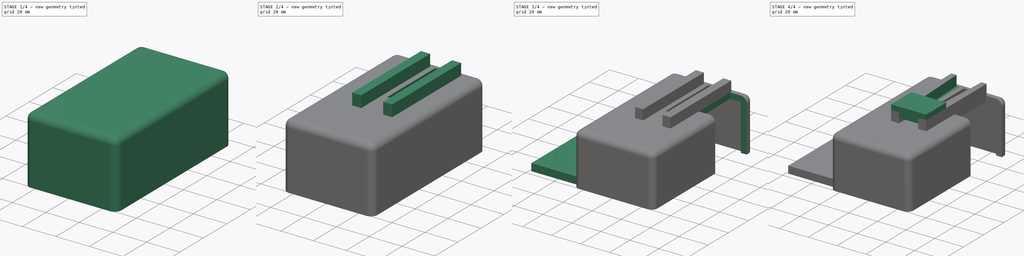
[diagram: build sequence overview — one tinted view per stage of 4, left to right]
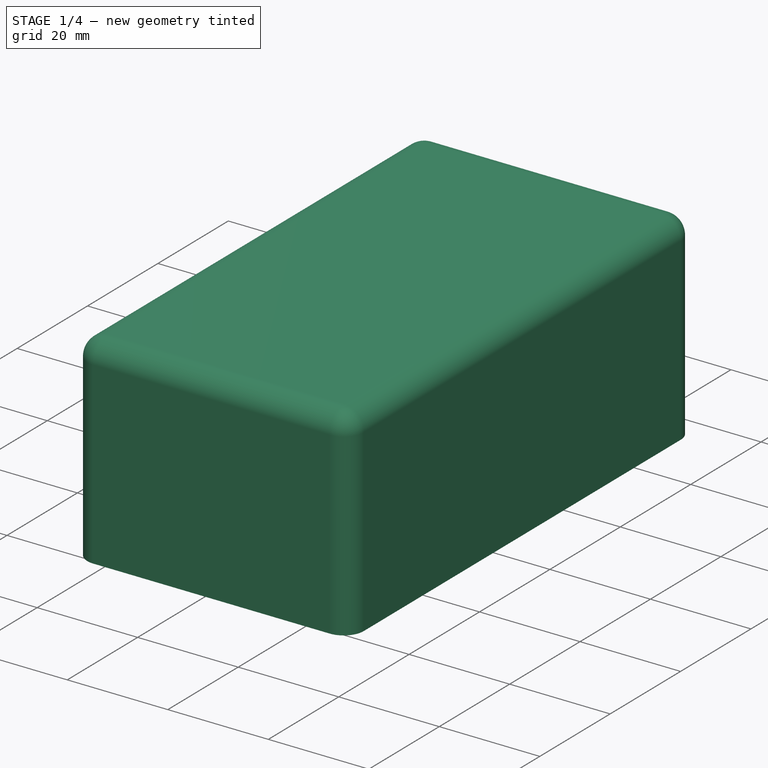
[diagram: stage 1 of 4 — iso view after this stage's code; geometry added in this stage tinted green]
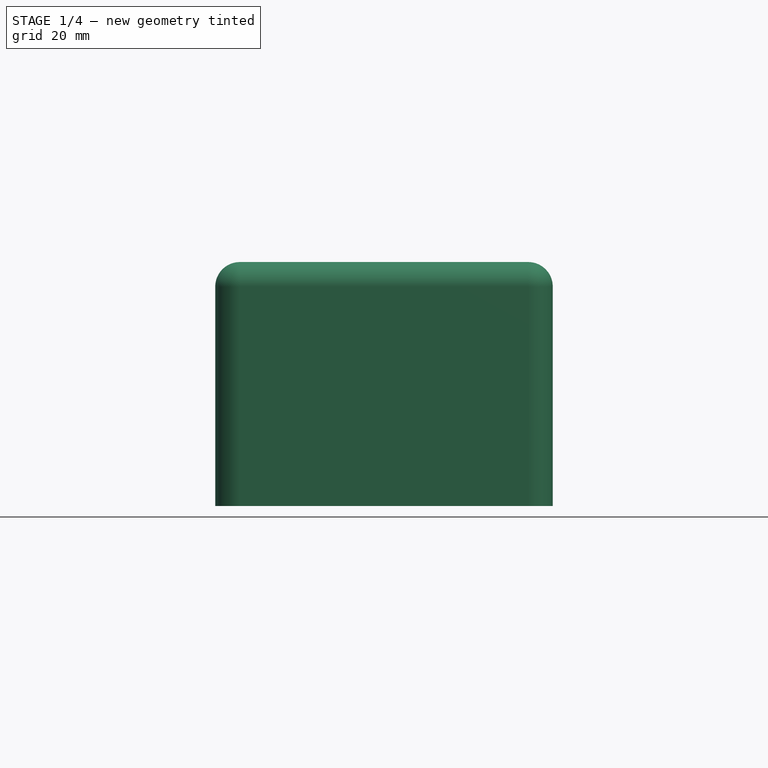
[diagram: stage 1 of 4 — front view after this stage's code; geometry added in this stage tinted green]
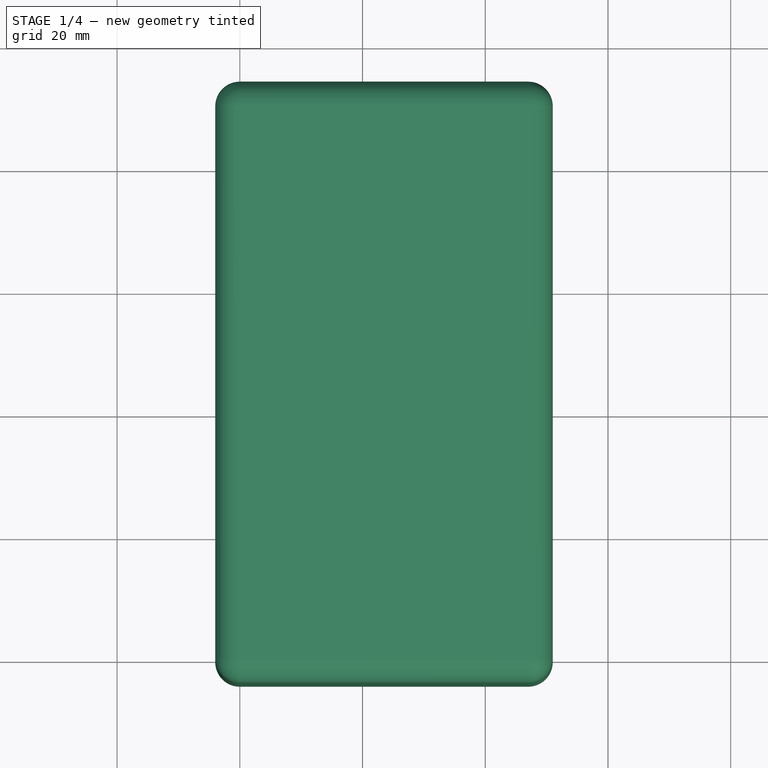
[diagram: stage 1 of 4 — top view after this stage's code; geometry added in this stage tinted green]
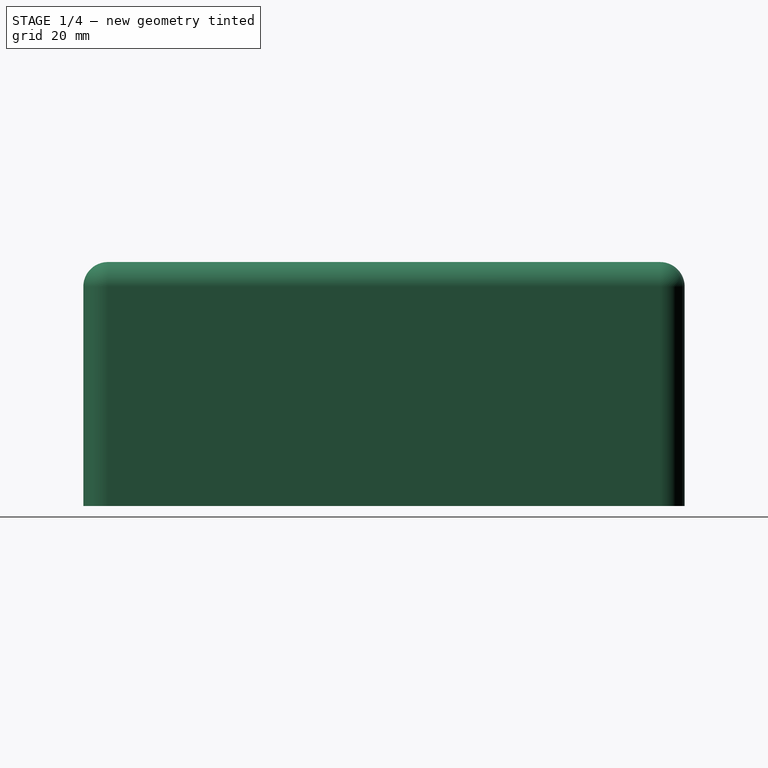
[diagram: stage 1 of 4 — right view after this stage's code; geometry added in this stage tinted green]
FCSTD DOCUMENT  (FreeCAD 0.21R33771 (Git))
Label: Saw table
License: All rights reserved
LicenseURL: https://en.wikipedia.org/wiki/All_rights_reserved
objects: Sketcher::SketchObject×8, PartDesign::Pocket×5, PartDesign::Pad×4, PartDesign::Thickness×1, PartDesign::Body×1
note: 29 computed .brp shape members not serialized (recipe doc carries the construction recipe); baked Part::Feature solids carry a one-line shape summary decoded from their .brp

FEATURE [Sketcher::SketchObject] Sketch
  FullyConstrained = true
  MapMode = 5
  Support = -> [XY_Plane]
  sketch-geometry (4):
    g0: LineSegment StartX=0 StartY=0 StartZ=0 EndX=47 EndY=0 EndZ=0
    g1: LineSegment StartX=47 StartY=0 StartZ=0 EndX=47 EndY=90 EndZ=0
    g2: LineSegment StartX=47 StartY=90 StartZ=0 EndX=0 EndY=90 EndZ=0
    g3: LineSegment StartX=0 StartY=90 StartZ=0 EndX=0 EndY=0 EndZ=0
  constraints (11):
    c: Coincident(g0,g1)
    c: Coincident(g1,g2)
    c: Coincident(g2,g3)
    c: Coincident(g3,g0)
    c: Horizontal(g0)
    c: Horizontal(g2)
    c: Vertical(g1)
    c: Vertical(g3)
    c: Coincident(g0,g-1)
    c: Distance(g0) = 47
    c: Distance(g1) = 90
FEATURE [PartDesign::Pad] Pad
  Direction = (0,0,1)
  Length = 35.75
  Length2 = 10
  Profile = -> Sketch
  ReferenceAxis = -> Sketch [N_Axis]
  Type = 0
FEATURE [PartDesign::Thickness] Thickness
  Base = -> Pad [Face5]
  BaseFeature = -> Pad
  Intersection = false
  Join = 0
  Mode = 0
  SupportTransform = false
  Value = 4
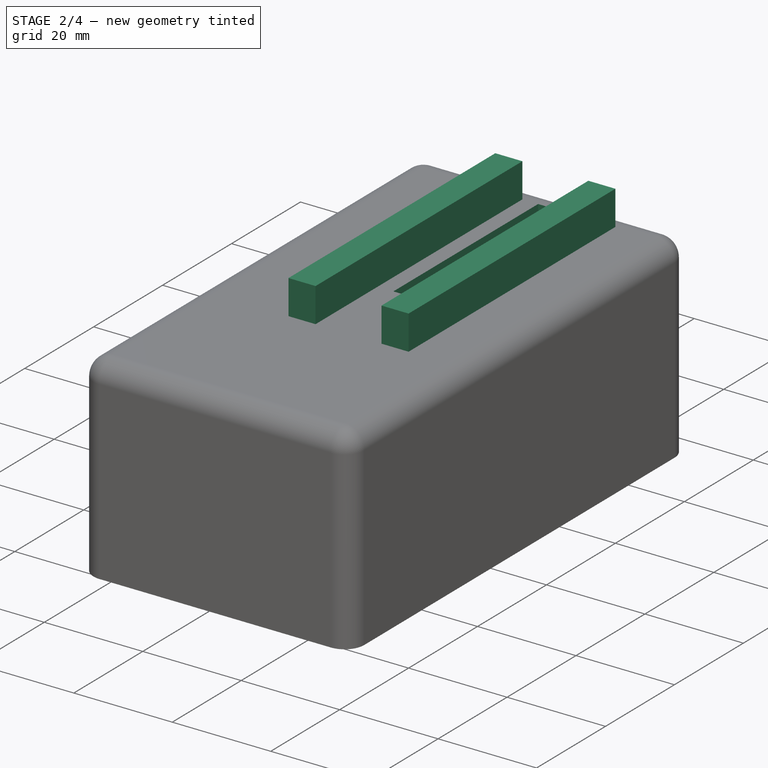
[diagram: stage 2 of 4 — iso view after this stage's code; geometry added in this stage tinted green]
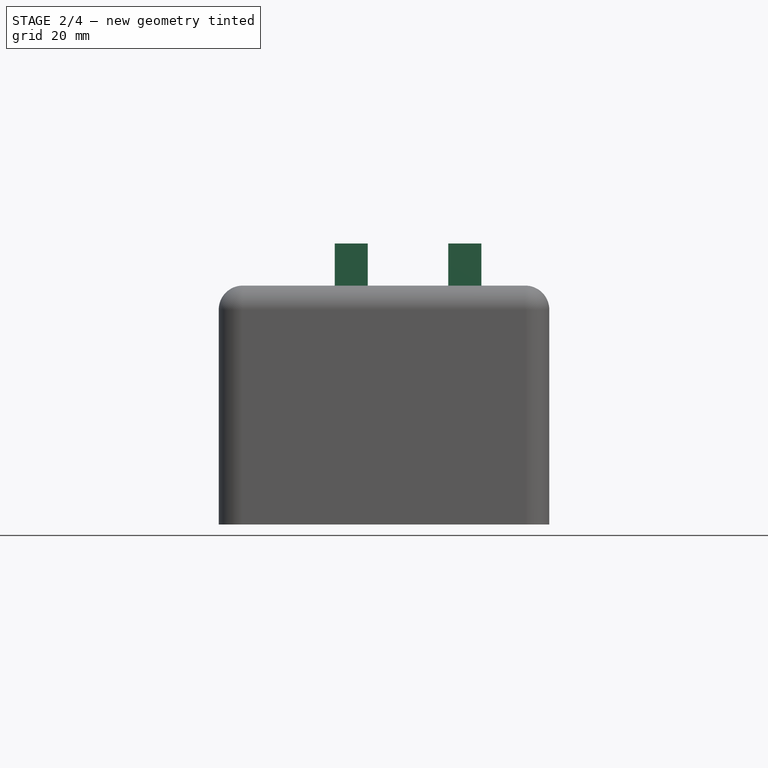
[diagram: stage 2 of 4 — front view after this stage's code; geometry added in this stage tinted green]
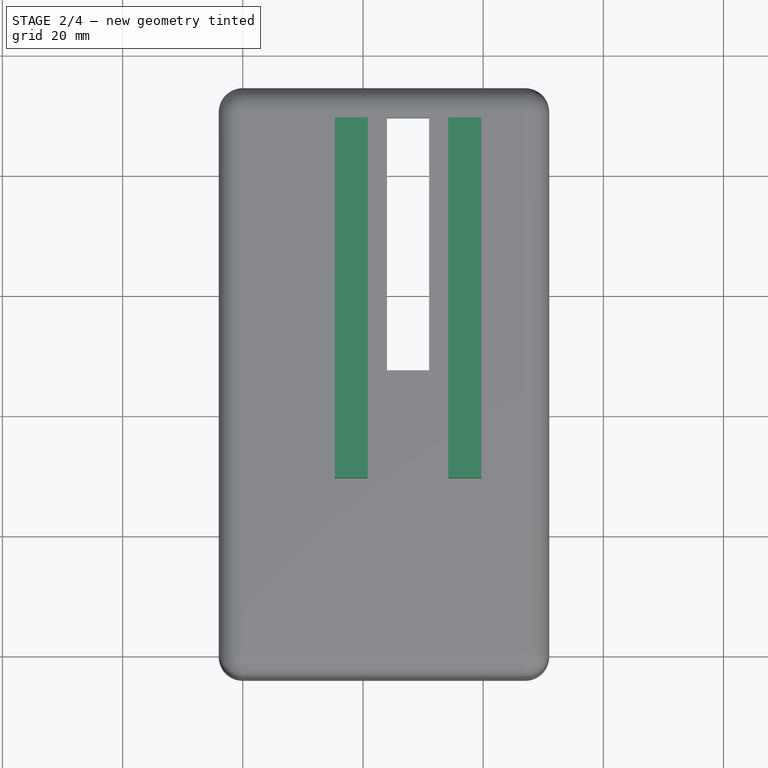
[diagram: stage 2 of 4 — top view after this stage's code; geometry added in this stage tinted green]
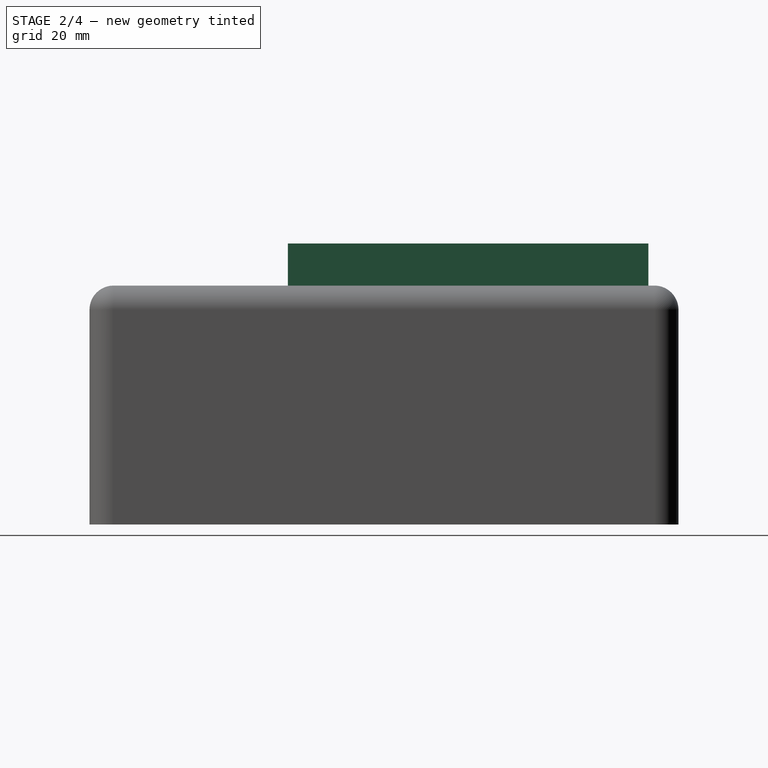
[diagram: stage 2 of 4 — right view after this stage's code; geometry added in this stage tinted green]
FEATURE [Sketcher::SketchObject] Sketch001
  FullyConstrained = true
  MapMode = 5
  Placement = pos=(51,0,0) rot=(0.57735,0.57735,0.57735;2.0944rad)
  Support = -> [Thickness]
  sketch-geometry (5):
    g0: LineSegment StartX=0 StartY=0 StartZ=0 EndX=27 EndY=0 EndZ=0
    g1: LineSegment StartX=27 StartY=0 StartZ=0 EndX=27 EndY=19 EndZ=0
    g2: LineSegment StartX=27 StartY=19 StartZ=0 EndX=0 EndY=19 EndZ=0
    g3: LineSegment StartX=0 StartY=19 StartZ=0 EndX=0 EndY=0 EndZ=0
    g4: Circle CenterX=27 CenterY=19 CenterZ=0 NormalX=0 NormalY=0 NormalZ=1 AngleXU=0 Radius=0.025
  constraints (13):
    c: Coincident(g0,g1)
    c: Coincident(g1,g2)
    c: Coincident(g2,g3)
    c: Coincident(g3,g0)
    c: Horizontal(g0)
    c: Horizontal(g2)
    c: Vertical(g1)
    c: Vertical(g3)
    c: Coincident(g0,g-1)
    c: Distance(g2) = 27
    c: Distance(g1) = 19
    c: Coincident(g4,g1)
    c: Diameter(g4) = 0.05
FEATURE [PartDesign::Pocket] Pocket
  BaseFeature = -> Thickness
  Direction = (-1,0,0)
  Length = 5
  Length2 = 5
  Profile = -> Sketch001
  ReferenceAxis = -> Sketch001 [N_Axis]
  Type = 0
FEATURE [Sketcher::SketchObject] Sketch002
  ExternalGeometry = -> [Pocket]
  FullyConstrained = true
  MapMode = 5
  Placement = pos=(0,0,39.75) rot=(0,0,1;0rad)
  Support = -> [Pocket]
  sketch-geometry (8):
    g0: LineSegment StartX=0 StartY=90 StartZ=0 EndX=24 EndY=90 EndZ=0
    g1: LineSegment StartX=24 StartY=90 StartZ=0 EndX=24 EndY=89 EndZ=0
    g2: LineSegment StartX=24 StartY=89 StartZ=0 EndX=0 EndY=89 EndZ=0
    g3: LineSegment StartX=0 StartY=89 StartZ=0 EndX=0 EndY=90 EndZ=0
    g4: LineSegment StartX=24 StartY=89 StartZ=0 EndX=31 EndY=89 EndZ=0
    g5: LineSegment StartX=31 StartY=89 StartZ=0 EndX=31 EndY=47 EndZ=0
    g6: LineSegment StartX=31 StartY=47 StartZ=0 EndX=24 EndY=47 EndZ=0
    g7: LineSegment StartX=24 StartY=47 StartZ=0 EndX=24 EndY=89 EndZ=0
  constraints (22):
    c: Coincident(g0,g1)
    c: Coincident(g1,g2)
    c: Coincident(g2,g3)
    c: Coincident(g3,g0)
    c: Horizontal(g0)
    c: Horizontal(g2)
    c: Vertical(g1)
    c: Vertical(g3)
    c: Coincident(g0,g-4)
    c: Distance(g2) = 24
    c: Distance(g1) = 1
    c: Coincident(g4,g5)
    c: Coincident(g5,g6)
    c: Coincident(g6,g7)
    c: Coincident(g7,g4)
    c: Horizontal(g4)
    c: Horizontal(g6)
    c: Vertical(g5)
    c: Vertical(g7)
    c: Coincident(g4,g1)
    c: Distance(g5) = 42
    c: Distance(g6) = 7
FEATURE [PartDesign::Pocket] Pocket001
  BaseFeature = -> Pocket
  Direction = (0,0,-1)
  Length = 5
  Length2 = 5
  Profile = -> Sketch002
  ReferenceAxis = -> Sketch002 [N_Axis]
  Type = 0
FEATURE [Sketcher::SketchObject] Sketch003
  ExternalGeometry = -> [Pocket001]
  FullyConstrained = true
  MapMode = 5
  Placement = pos=(0,0,39.75) rot=(0,0,1;0rad)
  Support = -> [Pocket001]
  sketch-geometry (16):
    g0: LineSegment StartX=24 StartY=89 StartZ=0 EndX=20.8 EndY=89 EndZ=0
    g1: LineSegment StartX=20.8 StartY=89 StartZ=0 EndX=20.8 EndY=29 EndZ=0
    g2: LineSegment StartX=20.8 StartY=29 StartZ=0 EndX=24 EndY=29 EndZ=0
    g3: LineSegment StartX=24 StartY=29 StartZ=0 EndX=24 EndY=89 EndZ=0
    g4: LineSegment StartX=31 StartY=89 StartZ=0 EndX=34.2 EndY=89 EndZ=0
    g5: LineSegment StartX=34.2 StartY=89 StartZ=0 EndX=34.2 EndY=29 EndZ=0
    g6: LineSegment StartX=34.2 StartY=29 StartZ=0 EndX=31 EndY=29 EndZ=0
    g7: LineSegment StartX=31 StartY=29 StartZ=0 EndX=31 EndY=89 EndZ=0
    g8: LineSegment StartX=20.8 StartY=89 StartZ=0 EndX=15.3 EndY=89 EndZ=0
    g9: LineSegment StartX=15.3 StartY=89 StartZ=0 EndX=15.3 EndY=29 EndZ=0
    g10: LineSegment StartX=15.3 StartY=29 StartZ=0 EndX=20.8 EndY=29 EndZ=0
    g11: LineSegment StartX=20.8 StartY=29 StartZ=0 EndX=20.8 EndY=89 EndZ=0
    g12: LineSegment StartX=34.2 StartY=89 StartZ=0 EndX=39.7 EndY=89 EndZ=0
    g13: LineSegment StartX=39.7 StartY=89 StartZ=0 EndX=39.7 EndY=29 EndZ=0
    g14: LineSegment StartX=39.7 StartY=29 StartZ=0 EndX=34.2 EndY=29 EndZ=0
    g15: LineSegment StartX=34.2 StartY=29 StartZ=0 EndX=34.2 EndY=89 EndZ=0
  constraints (42):
    c: Coincident(g0,g1)
    c: Coincident(g1,g2)
    c: Coincident(g2,g3)
    c: Coincident(g3,g0)
    c: Horizontal(g0)
    c: Horizontal(g2)
    c: Vertical(g1)
    c: Vertical(g3)
    c: Coincident(g0,g-5)
    c: Coincident(g4,g5)
    c: Coincident(g5,g6)
    c: Coincident(g6,g7)
    c: Coincident(g7,g4)
    c: Horizontal(g4)
    c: Horizontal(g6)
    c: Vertical(g5)
    c: Vertical(g7)
    c: Coincident(g4,g-5)
    c: Distance(g0) = 3.2
    c: Distance(g1) = 60
    c: Equal(g0,g4)
    c: Equal(g1,g5)
    c: Coincident(g8,g9)
    c: Coincident(g9,g10)
    c: Coincident(g10,g11)
    c: Coincident(g11,g8)
    c: Horizontal(g8)
    c: Horizontal(g10)
    c: Vertical(g9)
    c: Coincident(g8,g0)
    c: Coincident(g12,g13)
    c: Coincident(g13,g14)
    c: Coincident(g14,g15)
    c: Coincident(g15,g12)
    c: Horizontal(g12)
    c: Horizontal(g14)
    c: Vertical(g13)
    c: Coincident(g12,g4)
    c: Coincident(g1,g10)
    c: Coincident(g14,g5)
    c: Distance(g8) = 5.5
    c: Equal(g8,g12)
FEATURE [PartDesign::Pad] Pad001
  BaseFeature = -> Pocket001
  Direction = (0,0,1)
  Length = 7
  Length2 = 10
  Profile = -> Sketch003
  ReferenceAxis = -> Sketch003 [N_Axis]
  Type = 0
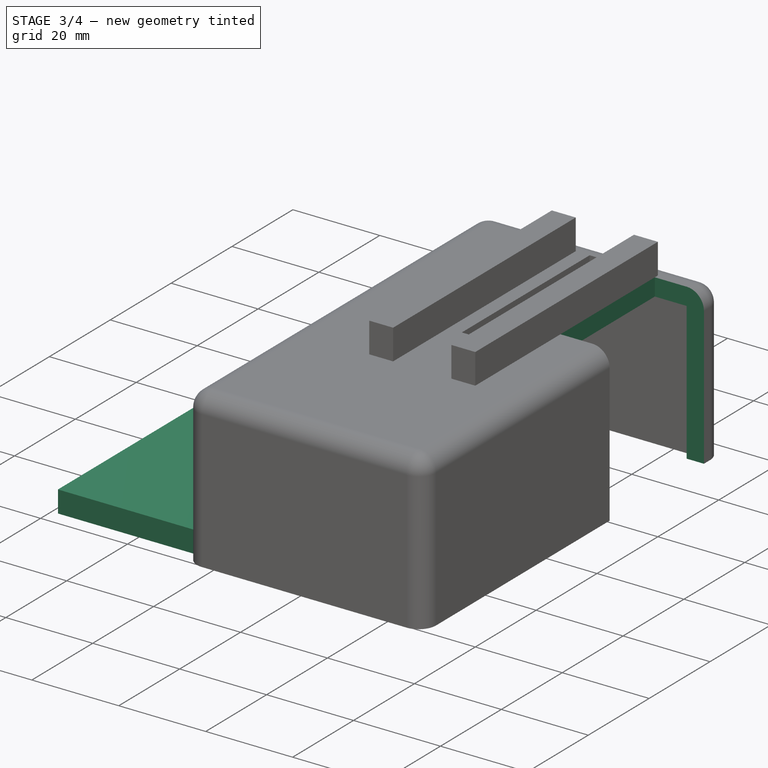
[diagram: stage 3 of 4 — iso view after this stage's code; geometry added in this stage tinted green]
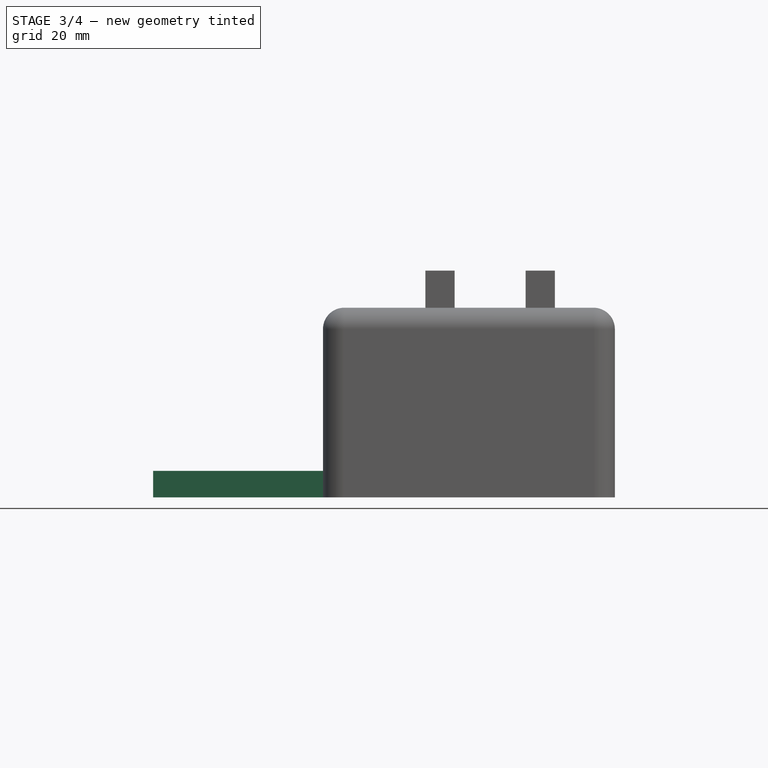
[diagram: stage 3 of 4 — front view after this stage's code; geometry added in this stage tinted green]
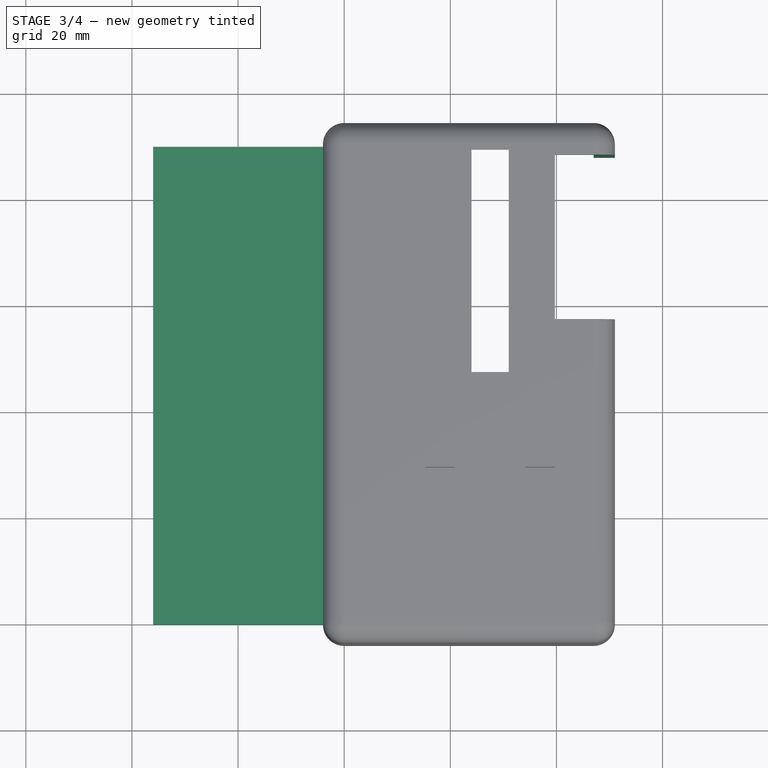
[diagram: stage 3 of 4 — top view after this stage's code; geometry added in this stage tinted green]
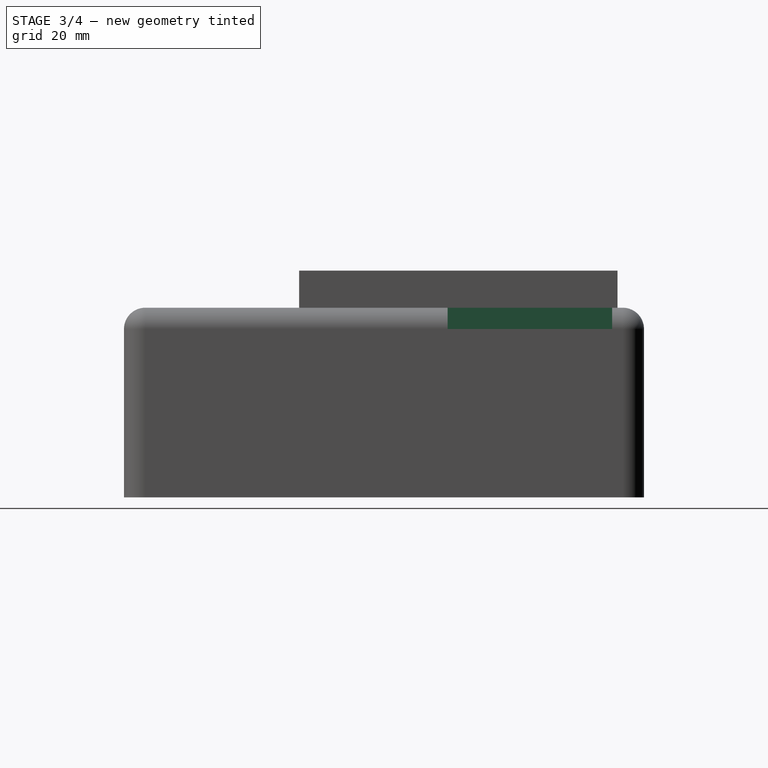
[diagram: stage 3 of 4 — right view after this stage's code; geometry added in this stage tinted green]
FEATURE [PartDesign::Pocket] Pocket002
  BaseFeature = -> Pad001
  Direction = (0,0,1)
  Length = 4
  Length2 = 5
  Profile = -> Pad001 [Face4]
  Type = 0
FEATURE [Sketcher::SketchObject] Sketch004
  ExternalGeometry = -> [Pocket002]
  FullyConstrained = true
  MapMode = 5
  Placement = pos=(51,0,0) rot=(0.57735,0.57735,0.57735;2.0944rad)
  Support = -> [Pocket002]
  sketch-geometry (8):
    g0: LineSegment StartX=90 StartY=4 StartZ=0 EndX=88 EndY=4 EndZ=0
    g1: LineSegment StartX=88 StartY=4 StartZ=0 EndX=88 EndY=8 EndZ=0
    g2: LineSegment StartX=88 StartY=8 StartZ=0 EndX=90 EndY=8 EndZ=0
    g3: LineSegment StartX=90 StartY=8 StartZ=0 EndX=90 EndY=4 EndZ=0
    g4: LineSegment StartX=88 StartY=4 StartZ=0 EndX=57 EndY=4 EndZ=0
    g5: LineSegment StartX=57 StartY=4 StartZ=0 EndX=57 EndY=44 EndZ=0
    g6: LineSegment StartX=57 StartY=44 StartZ=0 EndX=88 EndY=44 EndZ=0
    g7: LineSegment StartX=88 StartY=44 StartZ=0 EndX=88 EndY=4 EndZ=0
  constraints (22):
    c: Coincident(g0,g1)
    c: Coincident(g1,g2)
    c: Coincident(g2,g3)
    c: Coincident(g3,g0)
    c: Horizontal(g0)
    c: Horizontal(g2)
    c: Vertical(g1)
    c: Vertical(g3)
    c: Coincident(g0,g-4)
    c: Distance(g2) = 2
    c: Distance(g3) = 4
    c: Coincident(g4,g5)
    c: Coincident(g5,g6)
    c: Coincident(g6,g7)
    c: Coincident(g7,g4)
    c: Horizontal(g4)
    c: Horizontal(g6)
    c: Vertical(g5)
    c: Vertical(g7)
    c: Coincident(g4,g0)
    c: Distance(g4) = 31
    c: Distance(g7) = 40
FEATURE [PartDesign::Pocket] Pocket003
  BaseFeature = -> Pocket002
  Direction = (-1,0,0)
  Length = 0
  Length2 = 5
  Profile = -> Sketch004
  ReferenceAxis = -> Sketch004 [N_Axis]
  Type = 3
  UpToFace = -> Pocket002 [Face35]
FEATURE [Sketcher::SketchObject] Sketch005
  ExternalGeometry = -> [Pocket003]
  FullyConstrained = true
  MapMode = 5
  Placement = pos=(-4,0,0) rot=(0.57735,-0.57735,-0.57735;2.0944rad)
  Support = -> [Pocket003]
  sketch-geometry (4):
    g0: LineSegment StartX=-90 StartY=4 StartZ=0 EndX=0 EndY=4 EndZ=0
    g1: LineSegment StartX=0 StartY=4 StartZ=0 EndX=0 EndY=9 EndZ=0
    g2: LineSegment StartX=0 StartY=9 StartZ=0 EndX=-90 EndY=9 EndZ=0
    g3: LineSegment StartX=-90 StartY=9 StartZ=0 EndX=-90 EndY=4 EndZ=0
  constraints (11):
    c: Coincident(g0,g1)
    c: Coincident(g1,g2)
    c: Coincident(g2,g3)
    c: Coincident(g3,g0)
    c: Horizontal(g0)
    c: Horizontal(g2)
    c: Vertical(g1)
    c: Vertical(g3)
    c: Coincident(g0,g-3)
    c: PointOnObject(g1,g-2)
    c: Distance(g3) = 5
FEATURE [PartDesign::Pad] Pad002
  BaseFeature = -> Pocket003
  Direction = (-1,0,0)
  Length = 32
  Length2 = 10
  Profile = -> Sketch005
  ReferenceAxis = -> Sketch005 [N_Axis]
  Type = 0
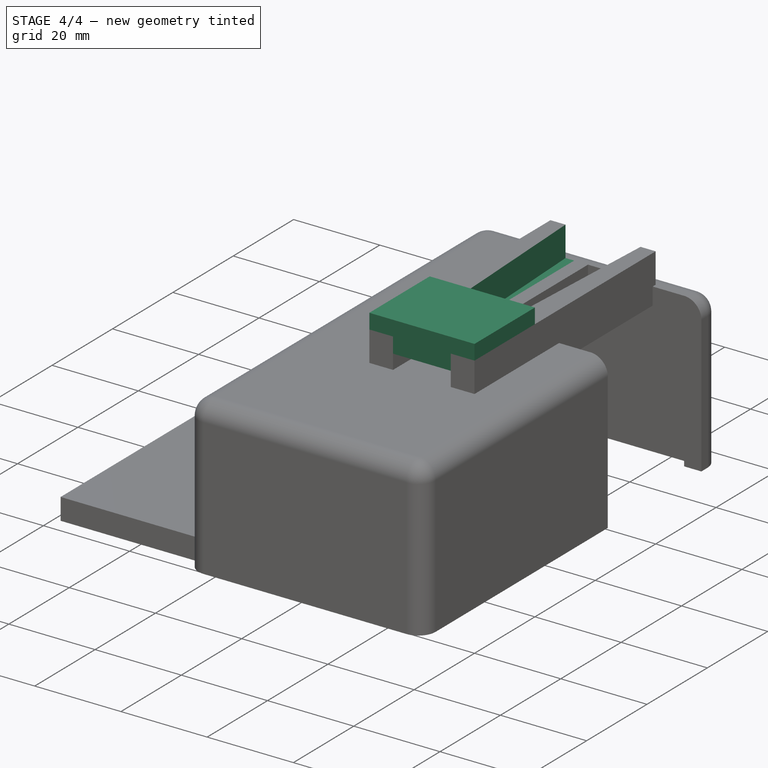
[diagram: stage 4 of 4 — iso view after this stage's code; geometry added in this stage tinted green]
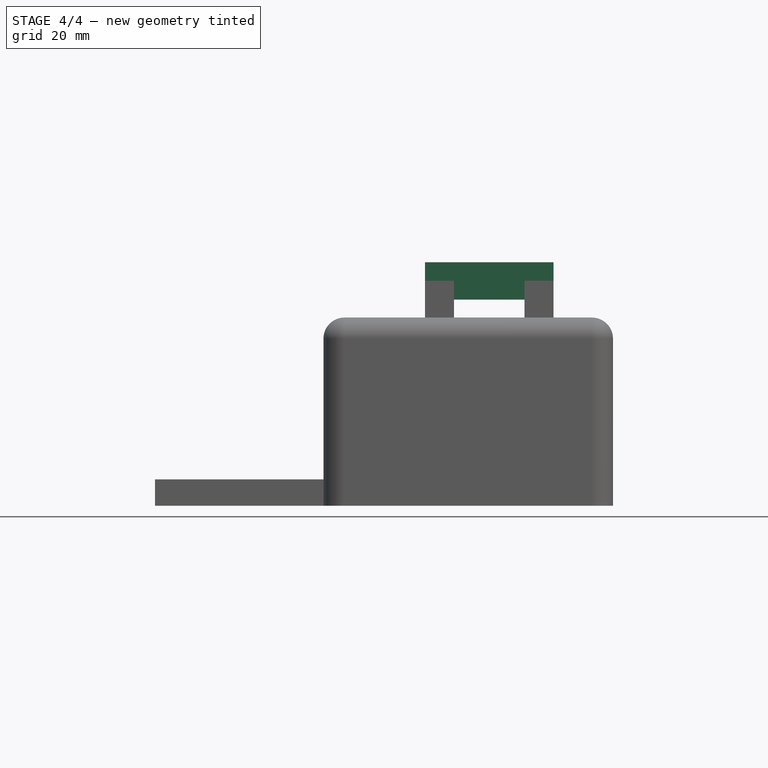
[diagram: stage 4 of 4 — front view after this stage's code; geometry added in this stage tinted green]
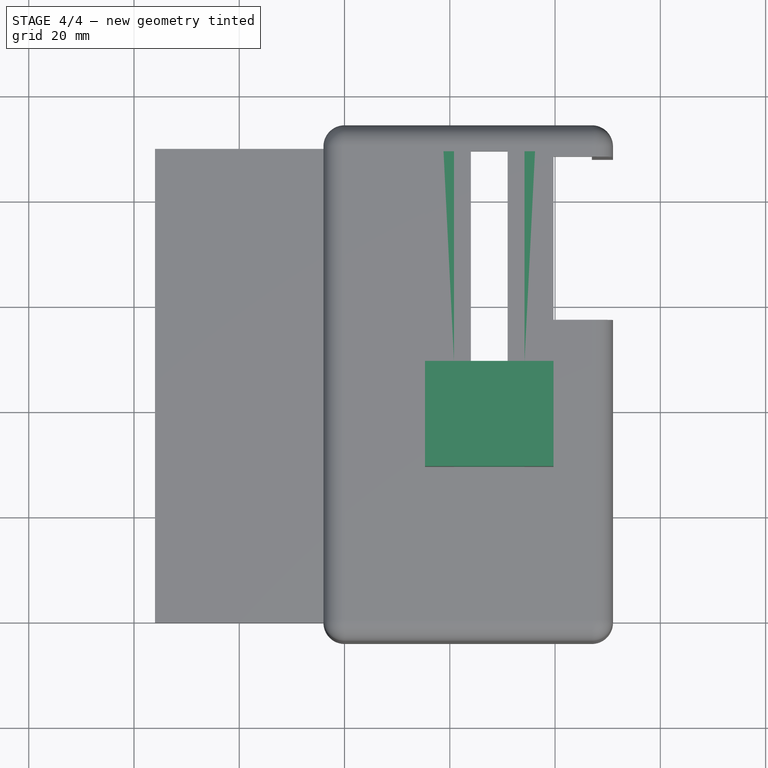
[diagram: stage 4 of 4 — top view after this stage's code; geometry added in this stage tinted green]
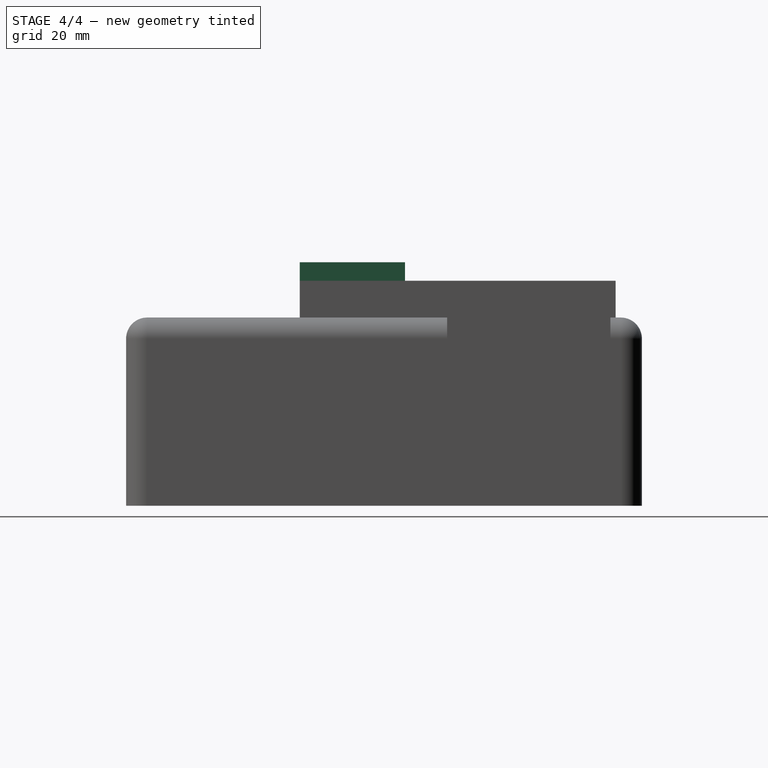
[diagram: stage 4 of 4 — right view after this stage's code; geometry added in this stage tinted green]
FEATURE [Sketcher::SketchObject] Sketch006
  ExternalGeometry = -> [Pad002]
  FullyConstrained = true
  MapMode = 5
  Placement = pos=(0,29,0) rot=(1,0,0;1.5708rad)
  Support = -> [Pad002]
  sketch-geometry (9):
    g0: LineSegment StartX=15.3 StartY=46.75 StartZ=0 EndX=15.3 EndY=50.25 EndZ=0
    g1: LineSegment StartX=34.2 StartY=46.75 StartZ=0 EndX=34.2 EndY=43.15 EndZ=0
    g2: LineSegment StartX=15.3 StartY=50.25 StartZ=0 EndX=34.2 EndY=50.25 EndZ=0
    g3: LineSegment StartX=34.2 StartY=46.75 StartZ=0 EndX=34.2 EndY=43.15 EndZ=0
    g4: LineSegment StartX=34.2 StartY=43.15 StartZ=0 EndX=15.3 EndY=43.15 EndZ=0
    g5: LineSegment StartX=15.3 StartY=43.15 StartZ=0 EndX=15.3 EndY=50.25 EndZ=0
    g6: LineSegment StartX=34.2 StartY=50.25 StartZ=0 EndX=39.7 EndY=50.25 EndZ=0
    g7: LineSegment StartX=39.7 StartY=50.25 StartZ=0 EndX=39.7 EndY=46.75 EndZ=0
    g8: LineSegment StartX=39.7 StartY=46.75 StartZ=0 EndX=34.2 EndY=46.75 EndZ=0
  constraints (25):
    c: Coincident(g0,g-5)
    c: Vertical(g0)
    c: Distance(g0) = 3.5
    c: Coincident(g1,g-4)
    c: PointOnObject(g1,g-4)
    c: Distance(g1) = 3.6
    c: Coincident(g3,g4)
    c: Coincident(g4,g5)
    c: Coincident(g5,g2)
    c: Horizontal(g2)
    c: Horizontal(g4)
    c: Vertical(g3)
    c: Vertical(g5)
    c: Coincident(g2,g0)
    c: Coincident(g3,g1)
    c: PointOnObject(g3,g-7)
    c: Coincident(g6,g7)
    c: Coincident(g7,g8)
    c: Horizontal(g6)
    c: Horizontal(g8)
    c: Vertical(g7)
    c: Coincident(g6,g2)
    c: Coincident(g7,g-8)
    c: Vertical(g2,g3)
    c: Coincident(g3,g8)
FEATURE [PartDesign::Pad] Pad003
  BaseFeature = -> Pad002
  Direction = (0,-1,2e-16)
  Length = 20
  Length2 = 10
  Profile = -> Sketch006
  ReferenceAxis = -> Sketch006 [N_Axis]
  Reversed = true
  Type = 0
FEATURE [Sketcher::SketchObject] Sketch007
  ExternalGeometry = -> [Pad003]
  FullyConstrained = true
  MapMode = 5
  Placement = pos=(0,0,46.75) rot=(0,0,1;0rad)
  Support = -> [Pad003]
  sketch-geometry (7):
    g0: LineSegment StartX=20.8 StartY=89 StartZ=0 EndX=18.8 EndY=89 EndZ=0
    g1: LineSegment StartX=34.2 StartY=89 StartZ=0 EndX=36.2 EndY=89 EndZ=0
    g2: LineSegment StartX=36.2 StartY=89 StartZ=0 EndX=34.2 EndY=49 EndZ=0
    g3: LineSegment StartX=34.2 StartY=89 StartZ=0 EndX=34.2 EndY=49 EndZ=0
    g4: LineSegment StartX=18.8 StartY=89 StartZ=0 EndX=20.8 EndY=49 EndZ=0
    g5: LineSegment StartX=34.2 StartY=49 StartZ=0 EndX=20.8 EndY=49 EndZ=0
    g6: LineSegment StartX=20.8 StartY=89 StartZ=0 EndX=20.8 EndY=49 EndZ=0
  constraints (17):
    c: Coincident(g0,g-4)
    c: PointOnObject(g0,g-3)
    c: Coincident(g1,g-6)
    c: PointOnObject(g1,g-6)
    c: Distance(g0) = 2
    c: Distance(g1) = 2
    c: Coincident(g2,g1)
    c: Coincident(g2,g-5)
    c: Coincident(g3,g1)
    c: Coincident(g3,g2)
    c: Coincident(g4,g0)
    c: Coincident(g5,g2)
    c: PointOnObject(g5,g-4)
    c: Horizontal(g5)
    c: Coincident(g4,g5)
    c: Coincident(g6,g0)
    c: Coincident(g6,g4)
FEATURE [PartDesign::Pocket] Pocket004
  BaseFeature = -> Pad003
  Direction = (0,0,-1)
  Length = 0
  Length2 = 5
  Profile = -> Sketch007
  ReferenceAxis = -> Sketch007 [N_Axis]
  Type = 3
  UpToFace = -> Pad003 [Face26]
FEATURE [PartDesign::Body] Body
  Group = -> [Sketch,Pad,Thickness,Sketch001,Pocket,Sketch002,Pocket001,Sketch003,Pad001,Pocket002,Sketch004,Pocket003,Sketch005,Pad002,Sketch006,Pad003,Sketch007,Pocket004]
  Origin = -> Origin
  Tip = -> Pocket004
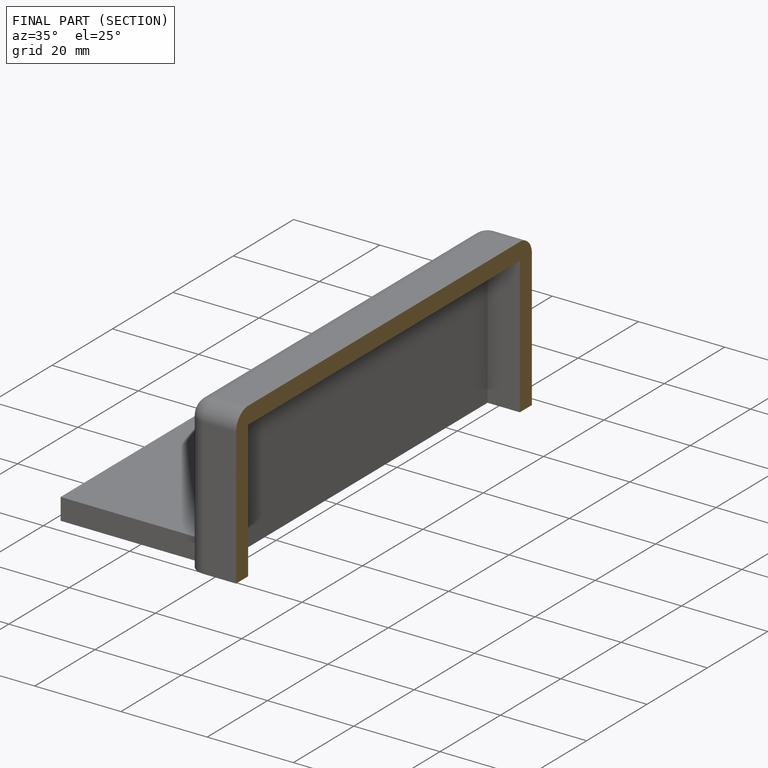
[diagram: finished part — half-section view (interior)]
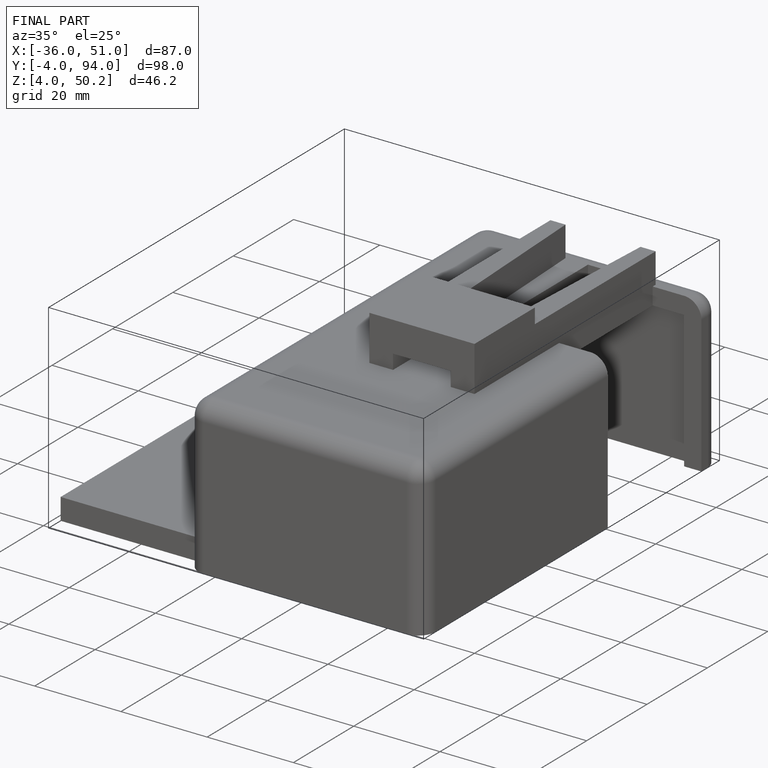
[diagram: finished part — iso view with bounding-box wireframe]
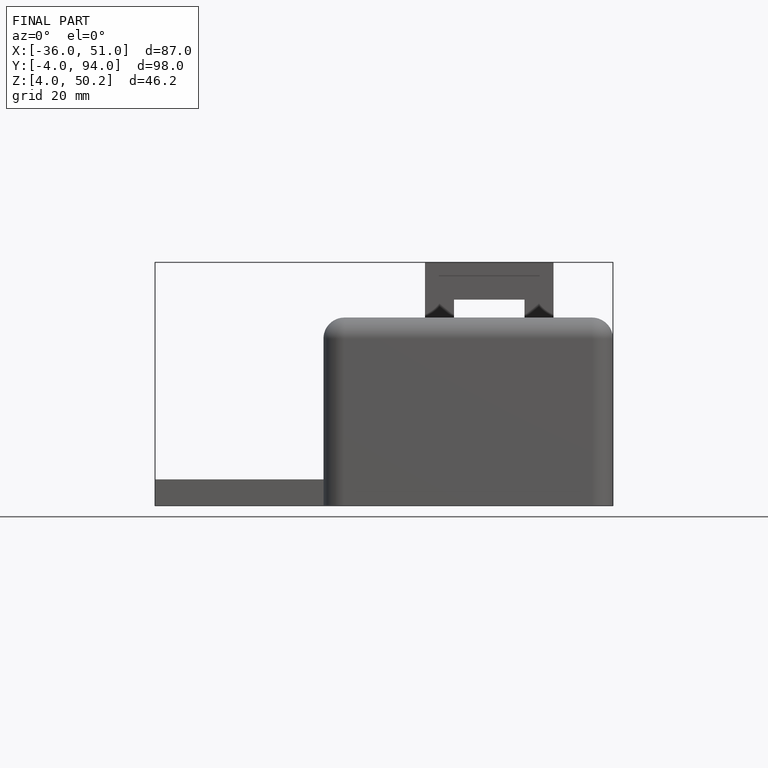
[diagram: finished part — front view with bounding-box wireframe]
